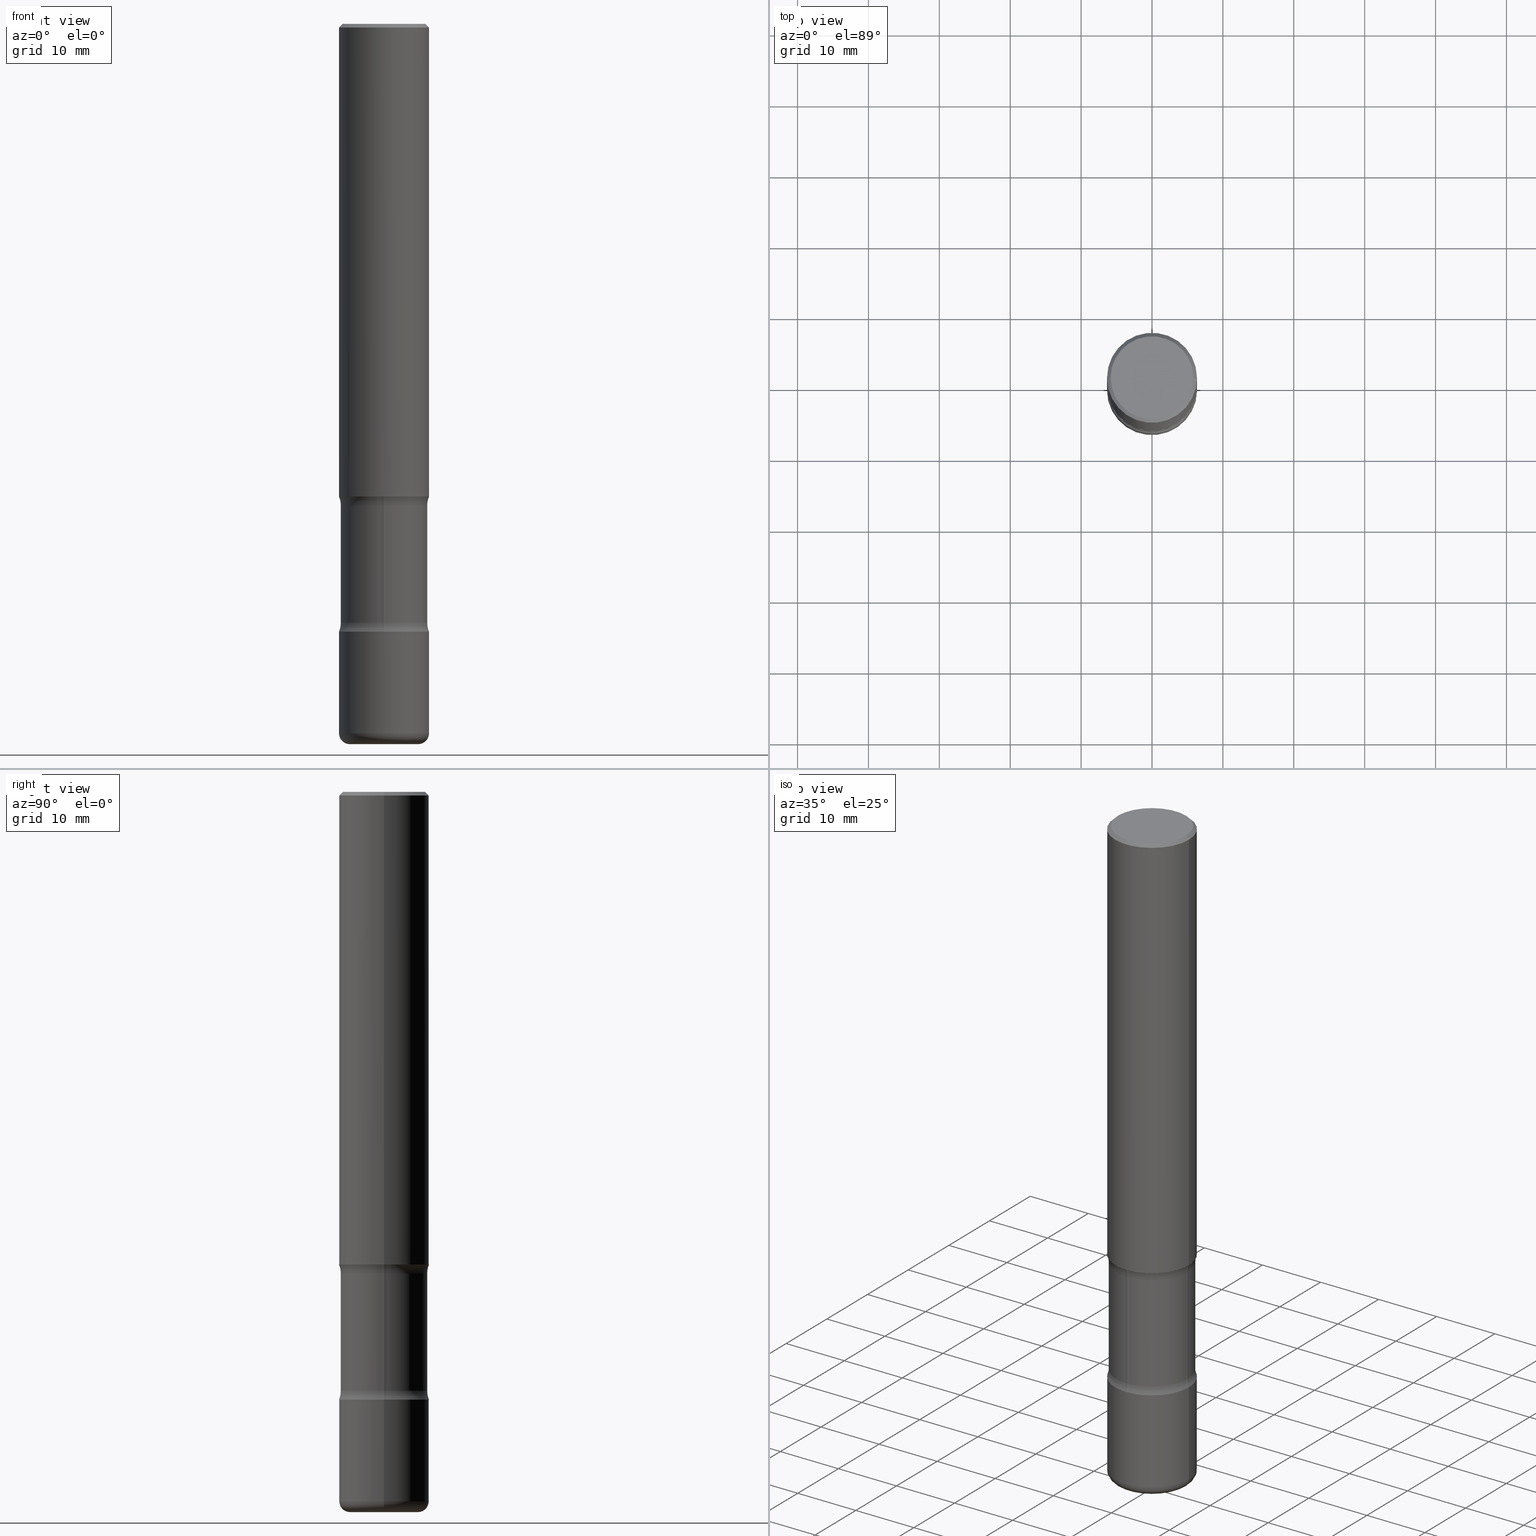
[diagram: canonical four-view strip — front | top / right | iso, engineering-drawing reading convention]
A machine part, canonical four-view strip (front | top / right | iso — engineering-drawing reading convention). The complete STEP part file that produces these views, byte-faithful:
ISO-10303-21;
HEADER;
FILE_DESCRIPTION (( 'STEP AP203' ),
    '1' );
FILE_NAME ('32768.STEP',
    '2023-03-11T07:00:43',
    ( '' ),
    ( '' ),
    'SwSTEP 2.0',
    'SolidWorks 2022',
    '' );
FILE_SCHEMA (( 'CONFIG_CONTROL_DESIGN' ));
ENDSEC;

DATA;
#1 = DIRECTION ( 'NONE',  ( -2.445468806185136597E-29, 3.491481338843145583E-15, 1.000000000000000000 ) ) ;
#2 = FACE_OUTER_BOUND ( 'NONE', #260, .T. ) ;
#3 = DIRECTION ( 'NONE',  ( -2.445468806185136597E-29, 3.491481338843145583E-15, 1.000000000000000000 ) ) ;
#4 = CIRCLE ( 'NONE', #334, 0.2500000000000000000 ) ;
#5 = FACE_OUTER_BOUND ( 'NONE', #225, .T. ) ;
#6 = TOROIDAL_SURFACE ( 'NONE', #145, 0.3649999999999999356, 0.1249999999999999584 ) ;
#7 = CARTESIAN_POINT ( 'NONE',  ( 1.606081415867839292E-15, 0.2299999999999997324, -8.009064516888723911E-16 ) ) ;
#8 = VERTEX_POINT ( 'NONE', #637 ) ;
#9 = CARTESIAN_POINT ( 'NONE',  ( 6.540663232779384843E-29, -9.334030794150637201E-15, -2.673989794855663682 ) ) ;
#10 = CARTESIAN_POINT ( 'NONE',  ( 4.890937612370287172E-31, -6.982962677686310098E-17, -0.02000000000000005593 ) ) ;
#11 = EDGE_CURVE ( 'NONE', #157, #113, #710, .T. ) ;
#12 = ORIENTED_EDGE ( 'NONE', *, *, #427, .T. ) ;
#13 = DIRECTION ( 'NONE',  ( 2.443322473091231846E-29, -3.494555009995310460E-15, -1.000000000000000000 ) ) ;
#14 = ORIENTED_EDGE ( 'NONE', *, *, #359, .T. ) ;
#15 = PLANE ( 'NONE',  #200 ) ;
#16 = CLOSED_SHELL ( 'NONE', ( #563, #460, #454, #107, #463, #139, #50, #82 ) ) ;
#17 = VECTOR ( 'NONE', #636, 39.37007874015748143 ) ;
#18 = ORIENTED_EDGE ( 'NONE', *, *, #268, .F. ) ;
#19 = ORIENTED_EDGE ( 'NONE', *, *, #233, .T. ) ;
#20 = DIRECTION ( 'NONE',  ( 6.982962677686265922E-15, 1.000000000000000000, -4.553079989440440670E-15 ) ) ;
#21 = EDGE_CURVE ( 'NONE', #164, #721, #623, .T. ) ;
#22 = FACE_OUTER_BOUND ( 'NONE', #257, .T. ) ;
#23 = DIRECTION ( 'NONE',  ( -1.000000000000000000, 6.982962677686265922E-15, -4.883557194083112340E-29 ) ) ;
#24 = ORIENTED_EDGE ( 'NONE', *, *, #256, .T. ) ;
#25 = LINE ( 'NONE', #68, #468 ) ;
#26 = VECTOR ( 'NONE', #510, 39.37007874015748143 ) ;
#27 = ORIENTED_EDGE ( 'NONE', *, *, #194, .F. ) ;
#28 = CALENDAR_DATE ( 2023, 11, 3 ) ;
#29 = CARTESIAN_POINT ( 'NONE',  ( -1.715124499442800060E-15, -0.2500000000000118239, -3.374999999999998668 ) ) ;
#30 = CARTESIAN_POINT ( 'NONE',  ( 9.766455520912181389E-29, -1.394771102909594036E-14, -3.994238073033861802 ) ) ;
#31 = EDGE_CURVE ( 'NONE', #336, #109, #341, .T. ) ;
#32 = CARTESIAN_POINT ( 'NONE',  ( -0.1899999999999999745, -1.240640527709780404E-14, -3.939999999999999947 ) ) ;
#33 = DIRECTION ( 'NONE',  ( -2.445468806185136877E-29, 3.491481338843145188E-15, 1.000000000000000000 ) ) ;
#34 = EDGE_CURVE ( 'NONE', #109, #787, #456, .T. ) ;
#35 = DATE_AND_TIME ( #659, #266 ) ;
#36 = FACE_OUTER_BOUND ( 'NONE', #269, .T. ) ;
#37 = LINE ( 'NONE', #306, #592 ) ;
#38 = AXIS2_PLACEMENT_3D ( 'NONE', #344, #355, #772 ) ;
#39 = CIRCLE ( 'NONE', #265, 0.1249999999999999584 ) ;
#40 = TOROIDAL_SURFACE ( 'NONE', #672, 0.3649999999999999356, 0.1249999999999999584 ) ;
#41 = EDGE_CURVE ( 'NONE', #253, #721, #160, .T. ) ;
#42 = CARTESIAN_POINT ( 'NONE',  ( 0.2500000000000000000, -1.091087918388482487E-14, -2.625000000000000000 ) ) ;
#43 = DATE_TIME_ROLE ( 'creation_date' ) ;
#44 = FACE_OUTER_BOUND ( 'NONE', #137, .T. ) ;
#45 = DIRECTION ( 'NONE',  ( -2.445468806185136597E-29, 3.491481338843145583E-15, 1.000000000000000000 ) ) ;
#46 = DIRECTION ( 'NONE',  ( -2.445468806185136597E-29, 3.491481338843145583E-15, 1.000000000000000000 ) ) ;
#47 = CIRCLE ( 'NONE', #415, 0.2399999999999999634 ) ;
#48 = DIRECTION ( 'NONE',  ( 6.982962677686265922E-15, 1.000000000000000000, -3.494555009995310854E-15 ) ) ;
#49 = CIRCLE ( 'NONE', #467, 0.2500000000000000000 ) ;
#50 = ADVANCED_FACE ( 'NONE', ( #798 ), #293, .F. ) ;
#51 = ORIENTED_EDGE ( 'NONE', *, *, #244, .T. ) ;
#52 = ORGANIZATION ( 'UNSPECIFIED', 'UNSPECIFIED', '' ) ;
#53 = FACE_OUTER_BOUND ( 'NONE', #760, .T. ) ;
#54 = ORIENTED_EDGE ( 'NONE', *, *, #31, .F. ) ;
#55 = CARTESIAN_POINT ( 'NONE',  ( 4.890937612370287172E-31, -6.982962677686310098E-17, -0.02000000000000005593 ) ) ;
#56 = DIRECTION ( 'NONE',  ( -6.982962677686265133E-15, -1.000000000000000000, 0.000000000000000000 ) ) ;
#57 = EDGE_LOOP ( 'NONE', ( #666, #12, #317, #520 ) ) ;
#58 = VERTEX_POINT ( 'NONE', #480 ) ;
#59 = FACE_OUTER_BOUND ( 'NONE', #763, .T. ) ;
#60 = CARTESIAN_POINT ( 'NONE',  ( -0.2500000000000000000, 1.776356839400250465E-15, -1.229733772563726445E-29 ) ) ;
#61 = ORIENTED_EDGE ( 'NONE', *, *, #494, .F. ) ;
#62 = AXIS2_PLACEMENT_3D ( 'NONE', #315, #686, #450 ) ;
#63 = CONICAL_SURFACE ( 'NONE', #87, 1127.411546571649069, 1.535889741755015248 ) ;
#64 = DIRECTION ( 'NONE',  ( -1.000000000000000000, 6.982962677686266711E-15, 0.000000000000000000 ) ) ;
#65 = FACE_OUTER_BOUND ( 'NONE', #542, .T. ) ;
#66 = ADVANCED_FACE ( 'NONE', ( #238 ), #176, .T. ) ;
#67 = ORIENTED_EDGE ( 'NONE', *, *, #194, .T. ) ;
#68 = CARTESIAN_POINT ( 'NONE',  ( -1.227697433986456075E-17, -1.394580769489453534E-14, -3.994238073033861802 ) ) ;
#69 = EDGE_CURVE ( 'NONE', #643, #345, #426, .T. ) ;
#70 = VERTEX_POINT ( 'NONE', #652 ) ;
#71 = CARTESIAN_POINT ( 'NONE',  ( 8.133759354151864072E-29, -1.161255198554411461E-14, -3.326010205144336318 ) ) ;
#72 = EDGE_LOOP ( 'NONE', ( #228, #285, #78, #729 ) ) ;
#73 = EDGE_CURVE ( 'NONE', #58, #335, #220, .T. ) ;
#74 = LENGTH_MEASURE_WITH_UNIT ( LENGTH_MEASURE( 0.02539999999999999897 ), #339 );
#75 = AXIS2_PLACEMENT_3D ( 'NONE', #32, #368, #794 ) ;
#76 = CIRCLE ( 'NONE', #711, 0.2299999999999997324 ) ;
#77 = CIRCLE ( 'NONE', #584, 0.2299999999999997324 ) ;
#78 = ORIENTED_EDGE ( 'NONE', *, *, #73, .T. ) ;
#79 = CARTESIAN_POINT ( 'NONE',  ( 8.253457220874836014E-29, -1.178374951859561452E-14, -3.375000000000000000 ) ) ;
#80 = DIRECTION ( 'NONE',  ( 1.000000000000000000, -6.982962677686265922E-15, 4.876176775795935793E-29 ) ) ;
#81 = ORIENTED_EDGE ( 'NONE', *, *, #268, .T. ) ;
#82 = ADVANCED_FACE ( 'NONE', ( #217 ), #597, .T. ) ;
#83 = DIRECTION ( 'NONE',  ( -2.445468806185136597E-29, 3.491481338843145583E-15, 1.000000000000000000 ) ) ;
#84 = CIRCLE ( 'NONE', #402, 0.2399999999999999079 ) ;
#85 = DIRECTION ( 'NONE',  ( 6.982962677686265922E-15, 1.000000000000000000, -3.494555009995310854E-15 ) ) ;
#86 = AXIS2_PLACEMENT_3D ( 'NONE', #129, #197, #386 ) ;
#87 = AXIS2_PLACEMENT_3D ( 'NONE', #258, #801, #191 ) ;
#88 = DIRECTION ( 'NONE',  ( 1.000000000000000000, -6.982962677686267499E-15, 0.000000000000000000 ) ) ;
#89 = ADVANCED_FACE ( 'NONE', ( #163 ), #419, .T. ) ;
#90 = ORIENTED_EDGE ( 'NONE', *, *, #122, .F. ) ;
#91 = PERSON_AND_ORGANIZATION ( #283, #52 ) ;
#92 = DIRECTION ( 'NONE',  ( -2.445468806185136877E-29, 3.491481338843145188E-15, 1.000000000000000000 ) ) ;
#93 = DIRECTION ( 'NONE',  ( -2.445468806185136597E-29, 3.491481338843145583E-15, 1.000000000000000000 ) ) ;
#94 = DIRECTION ( 'NONE',  ( 1.000000000000000000, -6.982962677686261977E-15, 0.000000000000000000 ) ) ;
#95 = EDGE_CURVE ( 'NONE', #577, #152, #607, .T. ) ;
#96 = PERSON_AND_ORGANIZATION_ROLE ( 'creator' ) ;
#97 = LINE ( 'NONE', #478, #785 ) ;
#98 = DIRECTION ( 'NONE',  ( -2.445468806185136597E-29, 3.491481338843145583E-15, 1.000000000000000000 ) ) ;
#99 = VERTEX_POINT ( 'NONE', #479 ) ;
#100 = APPROVAL_ROLE ( '' ) ;
#101 = CC_DESIGN_DATE_AND_TIME_ASSIGNMENT ( #369, #481, ( #393 ) ) ;
#102 = VECTOR ( 'NONE', #363, 39.37007874015748854 ) ;
#103 = PLANE ( 'NONE',  #350 ) ;
#104 = AXIS2_PLACEMENT_3D ( 'NONE', #221, #418, #660 ) ;
#105 = AXIS2_PLACEMENT_3D ( 'NONE', #767, #529, #776 ) ;
#106 = APPROVAL_DATE_TIME ( #35, #222 ) ;
#107 = ADVANCED_FACE ( 'NONE', ( #44 ), #171, .F. ) ;
#108 = CYLINDRICAL_SURFACE ( 'NONE', #551, 0.2399999999999999356 ) ;
#109 = VERTEX_POINT ( 'NONE', #796 ) ;
#110 = CARTESIAN_POINT ( 'NONE',  ( 9.781875224740545266E-29, -1.396592535537258075E-14, -3.999999999999999556 ) ) ;
#111 = CARTESIAN_POINT ( 'NONE',  ( 8.133654205733900913E-29, -1.161270256406331354E-14, -3.326010205144336318 ) ) ;
#112 = DIRECTION ( 'NONE',  ( 2.443322473091231846E-29, -3.494555009995310460E-15, -1.000000000000000000 ) ) ;
#113 = VERTEX_POINT ( 'NONE', #227 ) ;
#114 = DIRECTION ( 'NONE',  ( 1.000000000000000000, -6.982962677686265133E-15, 0.000000000000000000 ) ) ;
#115 = DIRECTION ( 'NONE',  ( 1.000000000000000000, -6.982962677686269077E-15, 0.000000000000000000 ) ) ;
#116 = AXIS2_PLACEMENT_3D ( 'NONE', #290, #535, #205 ) ;
#117 = AXIS2_PLACEMENT_3D ( 'NONE', #123, #247, #634 ) ;
#118 = EDGE_LOOP ( 'NONE', ( #532, #400, #218, #506 ) ) ;
#119 = DIRECTION ( 'NONE',  ( 2.438088387897960049E-29, -3.491481338843145188E-15, -1.000000000000000000 ) ) ;
#120 = CARTESIAN_POINT ( 'NONE',  ( 8.133654205733900913E-29, -1.161270256406331354E-14, -3.326010205144336318 ) ) ;
#121 = ORIENTED_EDGE ( 'NONE', *, *, #41, .T. ) ;
#122 = EDGE_CURVE ( 'NONE', #141, #470, #37, .T. ) ;
#123 = CARTESIAN_POINT ( 'NONE',  ( 9.766455520912181389E-29, -1.394771102909594036E-14, -3.994238073033861802 ) ) ;
#124 = ORIENTED_EDGE ( 'NONE', *, *, #233, .F. ) ;
#125 = CARTESIAN_POINT ( 'NONE',  ( 0.2399999999999999634, -1.328861360670801692E-14, -3.326010205144336318 ) ) ;
#126 = EDGE_LOOP ( 'NONE', ( #239, #754 ) ) ;
#127 = DIRECTION ( 'NONE',  ( -2.445468806185136597E-29, 3.491481338843145583E-15, 1.000000000000000000 ) ) ;
#128 = EDGE_CURVE ( 'NONE', #411, #751, #4, .T. ) ;
#129 = CARTESIAN_POINT ( 'NONE',  ( 6.419355616235983567E-29, -9.165138514463256612E-15, -2.625000000000000000 ) ) ;
#130 = AXIS2_PLACEMENT_3D ( 'NONE', #156, #654, #88 ) ;
#131 = ORIENTED_EDGE ( 'NONE', *, *, #34, .F. ) ;
#132 = CIRCLE ( 'NONE', #552, 0.1249999999999999584 ) ;
#133 = ADVANCED_BREP_SHAPE_REPRESENTATION ( '32768', ( #677, #146, #413, #425, #444 ), #279 ) ;
#134 = LOCAL_TIME ( 2, 0, 43.00000000000000000, #782 ) ;
#135 = CARTESIAN_POINT ( 'NONE',  ( -0.2500000000000000000, -1.000739267919536563E-14, -3.375000000000000000 ) ) ;
#136 = PLANE ( 'NONE',  #670 ) ;
#137 = EDGE_LOOP ( 'NONE', ( #764, #61, #562, #193 ) ) ;
#138 = CARTESIAN_POINT ( 'NONE',  ( 1.675911042644801198E-15, 0.2399999999999860023, -3.994238073033863134 ) ) ;
#139 = ADVANCED_FACE ( 'NONE', ( #783 ), #103, .F. ) ;
#140 = ORIENTED_EDGE ( 'NONE', *, *, #389, .T. ) ;
#141 = VERTEX_POINT ( 'NONE', #302 ) ;
#142 = CARTESIAN_POINT ( 'NONE',  ( -1.043851414335219820E-46, 1.490343170380447200E-32, 4.268512490100411279E-18 ) ) ;
#143 = AXIS2_PLACEMENT_3D ( 'NONE', #158, #83, #357 ) ;
#144 = AXIS2_PLACEMENT_3D ( 'NONE', #429, #288, #675 ) ;
#145 = AXIS2_PLACEMENT_3D ( 'NONE', #586, #521, #765 ) ;
#146 = MANIFOLD_SOLID_BREP ( 'Body-Move/Copy2[2]', #719 ) ;
#147 = CARTESIAN_POINT ( 'NONE',  ( 0.2399999999999999356, -1.084104955710796157E-14, -2.625000000000000000 ) ) ;
#148 = VERTEX_POINT ( 'NONE', #541 ) ;
#149 = DIRECTION ( 'NONE',  ( -1.000000000000000000, 6.982962677686265922E-15, -4.876176775795935793E-29 ) ) ;
#150 = ADVANCED_FACE ( 'NONE', ( #422 ), #108, .T. ) ;
#151 = CYLINDRICAL_SURFACE ( 'NONE', #307, 0.2499999999999998890 ) ;
#152 = VERTEX_POINT ( 'NONE', #360 ) ;
#153 = MECHANICAL_CONTEXT ( 'NONE', #309, 'mechanical' ) ;
#154 = EDGE_CURVE ( 'NONE', #336, #253, #466, .T. ) ;
#155 = CARTESIAN_POINT ( 'NONE',  ( 1.675911042644784829E-15, 0.2399999999999883615, -3.326010205144337206 ) ) ;
#156 = CARTESIAN_POINT ( 'NONE',  ( 9.781875224740545266E-29, -1.396592535537258075E-14, -3.999999999999999556 ) ) ;
#157 = VERTEX_POINT ( 'NONE', #492 ) ;
#158 = CARTESIAN_POINT ( 'NONE',  ( 8.253457220874836014E-29, -1.178374951859561452E-14, -3.375000000000000000 ) ) ;
#159 = PERSON_AND_ORGANIZATION ( #283, #52 ) ;
#160 = CIRCLE ( 'NONE', #669, 0.1249999999999999584 ) ;
#161 = CARTESIAN_POINT ( 'NONE',  ( 6.419355616235983567E-29, -9.165138514463256612E-15, -2.625000000000000000 ) ) ;
#162 = CIRCLE ( 'NONE', #770, 0.1650000000000000078 ) ;
#163 = FACE_OUTER_BOUND ( 'NONE', #461, .T. ) ;
#164 = VERTEX_POINT ( 'NONE', #736 ) ;
#165 = DIRECTION ( 'NONE',  ( 2.443322473091231566E-29, -3.494555009995310460E-15, -1.000000000000000000 ) ) ;
#166 = DIRECTION ( 'NONE',  ( -6.982962677686265922E-15, -1.000000000000000000, 3.494555009995310460E-15 ) ) ;
#167 = EDGE_CURVE ( 'NONE', #157, #99, #322, .T. ) ;
#168 = PERSON_AND_ORGANIZATION_ROLE ( 'design_owner' ) ;
#169 = DIRECTION ( 'NONE',  ( 2.443322473091231846E-29, -3.494555009995310460E-15, -1.000000000000000000 ) ) ;
#170 = CALENDAR_DATE ( 2023, 11, 3 ) ;
#171 = TOROIDAL_SURFACE ( 'NONE', #569, 0.3649999999999998801, 0.1249999999999999584 ) ;
#172 = DIRECTION ( 'NONE',  ( 1.000000000000000000, -6.982962677686270655E-15, 0.000000000000000000 ) ) ;
#173 = CIRCLE ( 'NONE', #86, 0.2500000000000000000 ) ;
#174 = DIRECTION ( 'NONE',  ( 2.443322473091232126E-29, -3.494555009995310460E-15, -1.000000000000000000 ) ) ;
#175 = CARTESIAN_POINT ( 'NONE',  ( 6.539158631376917547E-29, -9.336185468995560747E-15, -2.673989794855663682 ) ) ;
#176 = CYLINDRICAL_SURFACE ( 'NONE', #524, 0.2399999999999999356 ) ;
#177 = VERTEX_POINT ( 'NONE', #615 ) ;
#178 = DIRECTION ( 'NONE',  ( 6.982962677686265922E-15, 1.000000000000000000, -4.553079989440440670E-15 ) ) ;
#179 = CC_DESIGN_PERSON_AND_ORGANIZATION_ASSIGNMENT ( #730, #537, ( #393 ) ) ;
#180 = DIRECTION ( 'NONE',  ( -1.000000000000000000, 6.982962677686266711E-15, 0.000000000000000000 ) ) ;
#181 = CARTESIAN_POINT ( 'NONE',  ( 6.419355616235983567E-29, -9.165138514463256612E-15, -2.625000000000000000 ) ) ;
#182 = VERTEX_POINT ( 'NONE', #42 ) ;
#183 = DIRECTION ( 'NONE',  ( 1.000000000000000000, -6.982962677686265133E-15, 0.000000000000000000 ) ) ;
#184 = CARTESIAN_POINT ( 'NONE',  ( 9.635147096369438236E-29, -1.375643647504199401E-14, -3.939999999999999947 ) ) ;
#185 = TOROIDAL_SURFACE ( 'NONE', #392, 0.3649999999999998801, 0.1249999999999999584 ) ;
#186 = ORIENTED_EDGE ( 'NONE', *, *, #69, .F. ) ;
#187 = CARTESIAN_POINT ( 'NONE',  ( 0.3649999999999999356, -1.416148394141880026E-14, -3.326010205144336318 ) ) ;
#188 = DIRECTION ( 'NONE',  ( 1.000000000000000000, -6.982962677686266711E-15, 4.876176775795935793E-29 ) ) ;
#189 = VERTEX_POINT ( 'NONE', #299 ) ;
#190 = ORIENTED_EDGE ( 'NONE', *, *, #167, .F. ) ;
#191 = DIRECTION ( 'NONE',  ( -1.000000000000000000, 6.982962677686266711E-15, 0.000000000000000000 ) ) ;
#192 = CARTESIAN_POINT ( 'NONE',  ( 9.635147096369438236E-29, -1.375643647504199401E-14, -3.939999999999999947 ) ) ;
#193 = ORIENTED_EDGE ( 'NONE', *, *, #762, .T. ) ;
#194 = EDGE_CURVE ( 'NONE', #787, #109, #84, .T. ) ;
#195 = FACE_OUTER_BOUND ( 'NONE', #57, .T. ) ;
#196 = DIMENSIONAL_EXPONENTS ( 1.000000000000000000, 0.000000000000000000, 0.000000000000000000, 0.000000000000000000, 0.000000000000000000, 0.000000000000000000, 0.000000000000000000 ) ;
#197 = DIRECTION ( 'NONE',  ( -2.445468806185136597E-29, 3.491481338843145583E-15, 1.000000000000000000 ) ) ;
#198 = ORIENTED_EDGE ( 'NONE', *, *, #540, .F. ) ;
#199 = VECTOR ( 'NONE', #174, 39.37007874015748143 ) ;
#200 = AXIS2_PLACEMENT_3D ( 'NONE', #79, #201, #149 ) ;
#201 = DIRECTION ( 'NONE',  ( 2.438088387897960049E-29, -3.491481338843145188E-15, -1.000000000000000000 ) ) ;
#202 = CC_DESIGN_PERSON_AND_ORGANIZATION_ASSIGNMENT ( #793, #168, ( #614 ) ) ;
#203 = ORIENTED_EDGE ( 'NONE', *, *, #743, .T. ) ;
#204 = DIRECTION ( 'NONE',  ( -0.9993908270190959842, 6.856857904024576981E-15, -0.03489949670249575808 ) ) ;
#205 = DIRECTION ( 'NONE',  ( 1.000000000000000000, -6.982962677686270655E-15, 0.000000000000000000 ) ) ;
#206 = DIRECTION ( 'NONE',  ( 6.982962677686265922E-15, 1.000000000000000000, -4.370956789862821150E-15 ) ) ;
#207 = EDGE_LOOP ( 'NONE', ( #414, #741, #67, #198 ) ) ;
#208 = DIRECTION ( 'NONE',  ( -1.000000000000000000, 7.105427357600998703E-15, 0.000000000000000000 ) ) ;
#209 = AXIS2_PLACEMENT_3D ( 'NONE', #431, #676, #731 ) ;
#210 = CARTESIAN_POINT ( 'NONE',  ( -0.2399999999999999356, -7.459835948639017807E-15, -2.625000000000000000 ) ) ;
#211 = CARTESIAN_POINT ( 'NONE',  ( 6.419355616235983567E-29, -9.165138514463256612E-15, -2.625000000000000000 ) ) ;
#212 = AXIS2_PLACEMENT_3D ( 'NONE', #629, #626, #188 ) ;
#213 = CIRCLE ( 'NONE', #62, 0.2500000000000000000 ) ;
#214 = ORIENTED_EDGE ( 'NONE', *, *, #705, .F. ) ;
#215 = EDGE_CURVE ( 'NONE', #148, #58, #501, .T. ) ;
#216 =( CONVERSION_BASED_UNIT ( 'INCH', #74 ) LENGTH_UNIT ( ) NAMED_UNIT ( #196 ) );
#217 = FACE_OUTER_BOUND ( 'NONE', #744, .T. ) ;
#218 = ORIENTED_EDGE ( 'NONE', *, *, #557, .T. ) ;
#219 = PERSON_AND_ORGANIZATION_ROLE ( 'design_supplier' ) ;
#220 = CIRCLE ( 'NONE', #38, 0.2500000000000000000 ) ;
#221 = CARTESIAN_POINT ( 'NONE',  ( 8.133654205733900913E-29, -1.161270256406331354E-14, -3.326010205144336318 ) ) ;
#222 = APPROVAL ( #229, 'UNSPECIFIED' ) ;
#223 = CC_DESIGN_APPROVAL ( #222, ( #673 ) ) ;
#224 = DIRECTION ( 'NONE',  ( 1.000000000000000000, -6.982962677686266711E-15, 4.876176775795935793E-29 ) ) ;
#225 = EDGE_LOOP ( 'NONE', ( #690, #203, #703 ) ) ;
#226 = CARTESIAN_POINT ( 'NONE',  ( 6.419355616235983567E-29, -9.165138514463256612E-15, -2.625000000000000000 ) ) ;
#227 = CARTESIAN_POINT ( 'NONE',  ( 0.1899999999999999745, -1.529268826413297395E-14, -4.000000000000000888 ) ) ;
#228 = ORIENTED_EDGE ( 'NONE', *, *, #738, .F. ) ;
#229 = APPROVAL_STATUS ( 'not_yet_approved' ) ;
#230 = ADVANCED_FACE ( 'NONE', ( #371 ), #549, .T. ) ;
#231 = CARTESIAN_POINT ( 'NONE',  ( 6.419355616235983567E-29, -9.165138514463256612E-15, -2.625000000000000000 ) ) ;
#232 = DESIGN_CONTEXT ( 'detailed design', #280, 'design' ) ;
#233 = EDGE_CURVE ( 'NONE', #574, #410, #699, .T. ) ;
#234 = AXIS2_PLACEMENT_3D ( 'NONE', #434, #555, #680 ) ;
#235 = DIRECTION ( 'NONE',  ( -0.7071067811865474617, 2.468850131082256666E-15, -0.7071067811865474617 ) ) ;
#236 = CIRCLE ( 'NONE', #504, 0.1249999999999999584 ) ;
#237 = LOCAL_TIME ( 2, 0, 43.00000000000000000, #611 ) ;
#238 = FACE_OUTER_BOUND ( 'NONE', #276, .T. ) ;
#239 = ORIENTED_EDGE ( 'NONE', *, *, #21, .F. ) ;
#240 = ADVANCED_FACE ( 'NONE', ( #620 ), #275, .T. ) ;
#241 = CARTESIAN_POINT ( 'NONE',  ( 0.2299999999999997324, -1.681434332853597433E-15, 4.268512490111905999E-18 ) ) ;
#242 = CARTESIAN_POINT ( 'NONE',  ( 2.548781377355568365E-15, 0.3649999999999883338, -3.326010205144337206 ) ) ;
#243 = ORIENTED_EDGE ( 'NONE', *, *, #805, .T. ) ;
#244 = EDGE_CURVE ( 'NONE', #189, #99, #251, .T. ) ;
#245 = FACE_OUTER_BOUND ( 'NONE', #528, .T. ) ;
#246 = FACE_OUTER_BOUND ( 'NONE', #439, .T. ) ;
#247 = DIRECTION ( 'NONE',  ( 2.443322473091231846E-29, -3.494555009995310460E-15, -1.000000000000000000 ) ) ;
#248 = DIRECTION ( 'NONE',  ( 2.438088387897960049E-29, -3.491481338843145188E-15, -1.000000000000000000 ) ) ;
#249 = ADVANCED_FACE ( 'NONE', ( #688 ), #305, .T. ) ;
#250 = CC_DESIGN_PERSON_AND_ORGANIZATION_ASSIGNMENT ( #472, #219, ( #673 ) ) ;
#251 = CIRCLE ( 'NONE', #655, 0.2499999999999999722 ) ;
#252 = AXIS2_PLACEMENT_3D ( 'NONE', #192, #503, #747 ) ;
#253 = VERTEX_POINT ( 'NONE', #693 ) ;
#254 = CIRCLE ( 'NONE', #406, 0.2399999999999999634 ) ;
#255 = DIRECTION ( 'NONE',  ( -6.982962677686266711E-15, -1.000000000000000000, 3.491481338843145583E-15 ) ) ;
#256 = EDGE_CURVE ( 'NONE', #177, #345, #498, .T. ) ;
#257 = EDGE_LOOP ( 'NONE', ( #190, #681, #14, #18 ) ) ;
#258 = CARTESIAN_POINT ( 'NONE',  ( 1.060460840681890784E-27, -1.514057029249396506E-13, -43.36431681319133702 ) ) ;
#259 = DIRECTION ( 'NONE',  ( -2.445468806185136597E-29, 3.491481338843145583E-15, 1.000000000000000000 ) ) ;
#260 = EDGE_LOOP ( 'NONE', ( #485, #496 ) ) ;
#261 = CARTESIAN_POINT ( 'NONE',  ( -0.1649999999999997025, -1.281373651355435053E-14, -3.999999999999999556 ) ) ;
#262 = EDGE_CURVE ( 'NONE', #253, #336, #47, .T. ) ;
#263 = AXIS2_PLACEMENT_3D ( 'NONE', #319, #3, #94 ) ;
#264 = ORIENTED_EDGE ( 'NONE', *, *, #122, .T. ) ;
#265 = AXIS2_PLACEMENT_3D ( 'NONE', #619, #564, #114 ) ;
#266 = LOCAL_TIME ( 2, 0, 43.00000000000000000, #286 ) ;
#267 = CARTESIAN_POINT ( 'NONE',  ( -0.3649999999999998801, -6.742704483471196709E-15, -2.673989794855663682 ) ) ;
#268 = EDGE_CURVE ( 'NONE', #99, #189, #720, .T. ) ;
#269 = EDGE_LOOP ( 'NONE', ( #599, #795 ) ) ;
#270 = EDGE_LOOP ( 'NONE', ( #777, #511, #622, #90 ) ) ;
#271 = DIRECTION ( 'NONE',  ( 2.443322473091231846E-29, -3.494555009995310460E-15, -1.000000000000000000 ) ) ;
#272 = DIRECTION ( 'NONE',  ( -2.445468806185136597E-29, 3.491481338843145583E-15, 1.000000000000000000 ) ) ;
#273 = LINE ( 'NONE', #60, #26 ) ;
#274 = CC_DESIGN_DATE_AND_TIME_ASSIGNMENT ( #423, #43, ( #287 ) ) ;
#275 = CONICAL_SURFACE ( 'NONE', #769, 0.2499999999999998057, 0.7853981633974482790 ) ;
#276 = EDGE_LOOP ( 'NONE', ( #291, #432, #516, #27 ) ) ;
#277 = LINE ( 'NONE', #395, #733 ) ;
#278 = CIRCLE ( 'NONE', #337, 0.1899999999999999745 ) ;
#279 =( GEOMETRIC_REPRESENTATION_CONTEXT ( 3 ) GLOBAL_UNCERTAINTY_ASSIGNED_CONTEXT ( ( #545 ) ) GLOBAL_UNIT_ASSIGNED_CONTEXT ( ( #216, #724, #476 ) ) REPRESENTATION_CONTEXT ( 'NONE', 'WORKASPACE' ) );
#280 = APPLICATION_CONTEXT ( 'configuration controlled 3d designs of mechanical parts and assemblies' ) ;
#281 = DIRECTION ( 'NONE',  ( -2.445468806185136597E-29, 3.491481338843145583E-15, 1.000000000000000000 ) ) ;
#282 = EDGE_LOOP ( 'NONE', ( #140, #590, #398, #650 ) ) ;
#283 = PERSON ( 'UNSPECIFIED', 'UNSPECIFIED', 'UNSPECIFIED', ('UNSPECIFIED'), ('UNSPECIFIED'), ('UNSPECIFIED') ) ;
#284 = DIRECTION ( 'NONE',  ( 2.443322473091231846E-29, -3.494555009995310460E-15, -1.000000000000000000 ) ) ;
#285 = ORIENTED_EDGE ( 'NONE', *, *, #215, .T. ) ;
#286 = COORDINATED_UNIVERSAL_TIME_OFFSET ( 5, 0, .BEHIND. ) ;
#287 = PRODUCT_DEFINITION ( 'UNKNOWN', '', #673, #232 ) ;
#288 = DIRECTION ( 'NONE',  ( 2.443322473091231846E-29, -3.494555009995310460E-15, -1.000000000000000000 ) ) ;
#289 = DIRECTION ( 'NONE',  ( -1.000000000000000000, 6.982962677686265922E-15, -4.883557194083112340E-29 ) ) ;
#290 = CARTESIAN_POINT ( 'NONE',  ( 6.539158631376917547E-29, -9.336185468995560747E-15, -2.673989794855663682 ) ) ;
#291 = ORIENTED_EDGE ( 'NONE', *, *, #773, .F. ) ;
#292 = PERSON_AND_ORGANIZATION_ROLE ( 'creator' ) ;
#293 = TOROIDAL_SURFACE ( 'NONE', #582, 0.3649999999999999356, 0.1249999999999999584 ) ;
#294 = AXIS2_PLACEMENT_3D ( 'NONE', #211, #683, #378 ) ;
#295 = AXIS2_PLACEMENT_3D ( 'NONE', #695, #327, #304 ) ;
#296 = DIRECTION ( 'NONE',  ( -2.443322473091231566E-29, 3.494555009995310460E-15, 1.000000000000000000 ) ) ;
#297 = CARTESIAN_POINT ( 'NONE',  ( 0.000000000000000000, 0.000000000000000000, 0.000000000000000000 ) ) ;
#298 = ADVANCED_FACE ( 'NONE', ( #246 ), #632, .T. ) ;
#299 = CARTESIAN_POINT ( 'NONE',  ( 0.2500000000000000555, -1.550217714446356069E-14, -3.939999999999999947 ) ) ;
#300 = APPROVAL_DATE_TIME ( #617, #766 ) ;
#301 = LINE ( 'NONE', #735, #199 ) ;
#302 = CARTESIAN_POINT ( 'NONE',  ( -0.2299999999999997324, 1.640996229256270744E-15, 4.268512490089056766E-18 ) ) ;
#303 = EDGE_CURVE ( 'NONE', #8, #335, #132, .T. ) ;
#304 = DIRECTION ( 'NONE',  ( 1.000000000000000000, -6.982962677686268288E-15, 4.883557194083112901E-29 ) ) ;
#305 = TOROIDAL_SURFACE ( 'NONE', #490, 0.1899999999999999745, 0.06000000000000021289 ) ;
#306 = CARTESIAN_POINT ( 'NONE',  ( -0.2499999999999998057, 1.675911042644702196E-15, -0.02000000000000005593 ) ) ;
#307 = AXIS2_PLACEMENT_3D ( 'NONE', #409, #281, #716 ) ;
#308 = VECTOR ( 'NONE', #707, 39.37007874015748143 ) ;
#309 = APPLICATION_CONTEXT ( 'configuration controlled 3d designs of mechanical parts and assemblies' ) ;
#310 = EDGE_CURVE ( 'NONE', #141, #577, #76, .T. ) ;
#311 = ORIENTED_EDGE ( 'NONE', *, *, #743, .F. ) ;
#312 = DIRECTION ( 'NONE',  ( 1.000000000000000000, -6.982962677686267499E-15, 0.000000000000000000 ) ) ;
#313 = PLANE ( 'NONE',  #593 ) ;
#314 = ADVANCED_FACE ( 'NONE', ( #2 ), #696, .F. ) ;
#315 = CARTESIAN_POINT ( 'NONE',  ( 8.253457220874836014E-29, -1.178374951859561452E-14, -3.375000000000000000 ) ) ;
#316 = CC_DESIGN_PERSON_AND_ORGANIZATION_ASSIGNMENT ( #533, #292, ( #673 ) ) ;
#317 = ORIENTED_EDGE ( 'NONE', *, *, #639, .F. ) ;
#318 = CARTESIAN_POINT ( 'NONE',  ( -1.043851414335219820E-46, 1.490343170380447200E-32, 4.268512490100411279E-18 ) ) ;
#319 = CARTESIAN_POINT ( 'NONE',  ( 9.781875224740547508E-29, -1.396592535537258391E-14, -4.000000000000000888 ) ) ;
#320 = DIRECTION ( 'NONE',  ( 1.000000000000000000, -6.982962677686268288E-15, 4.883557194083112901E-29 ) ) ;
#321 = CARTESIAN_POINT ( 'NONE',  ( 0.1899999999999999745, -1.508319938380238721E-14, -3.939999999999999947 ) ) ;
#322 = CIRCLE ( 'NONE', #75, 0.06000000000000021289 ) ;
#323 = AXIS2_PLACEMENT_3D ( 'NONE', #226, #575, #385 ) ;
#324 = AXIS2_PLACEMENT_3D ( 'NONE', #517, #271, #20 ) ;
#325 = ORIENTED_EDGE ( 'NONE', *, *, #559, .T. ) ;
#326 = LOCAL_TIME ( 2, 0, 43.00000000000000000, #715 ) ;
#327 = DIRECTION ( 'NONE',  ( -2.445468806185136597E-29, 3.491481338843145583E-15, 1.000000000000000000 ) ) ;
#328 = FACE_BOUND ( 'NONE', #691, .T. ) ;
#329 = ORIENTED_EDGE ( 'NONE', *, *, #11, .F. ) ;
#330 = CARTESIAN_POINT ( 'NONE',  ( -1.680822009453943183E-15, -0.2400000000000115652, -3.326010205144334986 ) ) ;
#331 = CC_DESIGN_PERSON_AND_ORGANIZATION_ASSIGNMENT ( #91, #96, ( #287 ) ) ;
#332 = ORIENTED_EDGE ( 'NONE', *, *, #154, .T. ) ;
#333 = DIRECTION ( 'NONE',  ( 7.105427357601001859E-15, 1.000000000000000000, -3.491481338843145583E-15 ) ) ;
#334 = AXIS2_PLACEMENT_3D ( 'NONE', #725, #602, #172 ) ;
#335 = VERTEX_POINT ( 'NONE', #701 ) ;
#336 = VERTEX_POINT ( 'NONE', #125 ) ;
#337 = AXIS2_PLACEMENT_3D ( 'NONE', #753, #455, #589 ) ;
#338 = APPROVAL_PERSON_ORGANIZATION ( #159, #621, #100 ) ;
#339 =( LENGTH_UNIT ( ) NAMED_UNIT ( * ) SI_UNIT ( $, .METRE. ) );
#340 = FACE_OUTER_BOUND ( 'NONE', #384, .T. ) ;
#341 = LINE ( 'NONE', #147, #784 ) ;
#342 = DIRECTION ( 'NONE',  ( -2.445468806185136877E-29, 3.491481338843145188E-15, 1.000000000000000000 ) ) ;
#343 = DIRECTION ( 'NONE',  ( 1.000000000000000000, -6.982962677686266711E-15, 0.000000000000000000 ) ) ;
#344 = CARTESIAN_POINT ( 'NONE',  ( 6.420965366056412900E-29, -9.162833261099134137E-15, -2.625000000000000000 ) ) ;
#345 = VERTEX_POINT ( 'NONE', #451 ) ;
#346 = ORIENTED_EDGE ( 'NONE', *, *, #358, .T. ) ;
#347 = DIRECTION ( 'NONE',  ( 1.000000000000000000, -6.982962677686266711E-15, 4.876225828469314487E-29 ) ) ;
#348 = EDGE_CURVE ( 'NONE', #182, #509, #173, .T. ) ;
#349 = ORIENTED_EDGE ( 'NONE', *, *, #762, .F. ) ;
#350 = AXIS2_PLACEMENT_3D ( 'NONE', #727, #296, #166 ) ;
#351 = EDGE_LOOP ( 'NONE', ( #349, #781 ) ) ;
#352 = CALENDAR_DATE ( 2023, 11, 3 ) ;
#353 = CIRCLE ( 'NONE', #144, 0.2500000000000000000 ) ;
#354 = CC_DESIGN_APPROVAL ( #766, ( #393 ) ) ;
#355 = DIRECTION ( 'NONE',  ( 2.443322473091231846E-29, -3.494555009995310460E-15, -1.000000000000000000 ) ) ;
#356 = ORIENTED_EDGE ( 'NONE', *, *, #738, .T. ) ;
#357 = DIRECTION ( 'NONE',  ( 1.000000000000000000, -6.982962677686262766E-15, 0.000000000000000000 ) ) ;
#358 = EDGE_CURVE ( 'NONE', #99, #394, #273, .T. ) ;
#359 = EDGE_CURVE ( 'NONE', #113, #189, #745, .T. ) ;
#360 = CARTESIAN_POINT ( 'NONE',  ( 0.2499999999999998057, -1.784954126219744611E-15, -0.02000000000000005593 ) ) ;
#361 = APPLICATION_PROTOCOL_DEFINITION ( 'international standard', 'config_control_design', 1994, #309 ) ;
#362 = CARTESIAN_POINT ( 'NONE',  ( -0.2499999999999998057, 1.675911042644702196E-15, -0.02000000000000005593 ) ) ;
#363 = DIRECTION ( 'NONE',  ( 0.7071067811865474617, -7.319954787623256045E-15, -0.7071067811865474617 ) ) ;
#364 = CALENDAR_DATE ( 2023, 11, 3 ) ;
#365 = EDGE_CURVE ( 'NONE', #182, #152, #508, .T. ) ;
#366 = AXIS2_PLACEMENT_3D ( 'NONE', #161, #165, #664 ) ;
#367 = CIRCLE ( 'NONE', #554, 0.2500000000000000000 ) ;
#368 = DIRECTION ( 'NONE',  ( 7.105427357601001859E-15, 1.000000000000000000, -3.491481338843145583E-15 ) ) ;
#369 = DATE_AND_TIME ( #364, #134 ) ;
#370 = DIRECTION ( 'NONE',  ( 1.000000000000000000, -6.860497997771530774E-15, 4.840761238008761812E-29 ) ) ;
#371 = FACE_OUTER_BOUND ( 'NONE', #445, .T. ) ;
#372 = ADVANCED_FACE ( 'NONE', ( #65, #328 ), #136, .F. ) ;
#373 = CARTESIAN_POINT ( 'NONE',  ( 1.745740669421649508E-15, 0.2499999999999882594, -3.375000000000000888 ) ) ;
#374 = DIRECTION ( 'NONE',  ( -6.982962677686265133E-15, -1.000000000000000000, 0.000000000000000000 ) ) ;
#375 = ORIENTED_EDGE ( 'NONE', *, *, #310, .F. ) ;
#376 = DIRECTION ( 'NONE',  ( 2.445468806185136597E-29, -3.491481338843145583E-15, -1.000000000000000000 ) ) ;
#377 = ORIENTED_EDGE ( 'NONE', *, *, #674, .T. ) ;
#378 = DIRECTION ( 'NONE',  ( 1.000000000000000000, -6.982962677686270655E-15, 0.000000000000000000 ) ) ;
#379 = CIRCLE ( 'NONE', #570, 0.1249999999999999584 ) ;
#380 = AXIS2_PLACEMENT_3D ( 'NONE', #755, #651, #641 ) ;
#381 = EDGE_CURVE ( 'NONE', #152, #470, #635, .T. ) ;
#382 = DIRECTION ( 'NONE',  ( -1.000000000000000000, 6.982962677686265922E-15, -4.876176775795935793E-29 ) ) ;
#383 = DIRECTION ( 'NONE',  ( -2.445468806185136597E-29, 3.491481338843145583E-15, 1.000000000000000000 ) ) ;
#384 = EDGE_LOOP ( 'NONE', ( #435, #775, #548, #550 ) ) ;
#385 = DIRECTION ( 'NONE',  ( 1.000000000000000000, -6.982962677686265922E-15, 4.876176775795935793E-29 ) ) ;
#386 = DIRECTION ( 'NONE',  ( 1.000000000000000000, -6.982962677686270655E-15, 0.000000000000000000 ) ) ;
#387 = ORIENTED_EDGE ( 'NONE', *, *, #718, .T. ) ;
#388 = DIRECTION ( 'NONE',  ( -1.000000000000000000, 6.982962677686266711E-15, 0.000000000000000000 ) ) ;
#389 = EDGE_CURVE ( 'NONE', #113, #157, #278, .T. ) ;
#390 = CARTESIAN_POINT ( 'NONE',  ( 0.2499999999999998890, -1.745740669421565889E-15, 1.219044193948983388E-29 ) ) ;
#391 = CLOSED_SHELL ( 'NONE', ( #150, #627, #605, #598, #399, #662, #679, #66 ) ) ;
#392 = AXIS2_PLACEMENT_3D ( 'NONE', #558, #45, #320 ) ;
#393 = SECURITY_CLASSIFICATION ( '', '', #600 ) ;
#394 = VERTEX_POINT ( 'NONE', #768 ) ;
#395 = CARTESIAN_POINT ( 'NONE',  ( -0.2499999999999998890, 1.776356839400249676E-15, -1.229733772563726025E-29 ) ) ;
#396 = DIRECTION ( 'NONE',  ( -2.445468806185136597E-29, 3.491481338843145583E-15, 1.000000000000000000 ) ) ;
#397 = EDGE_CURVE ( 'NONE', #751, #411, #624, .T. ) ;
#398 = ORIENTED_EDGE ( 'NONE', *, *, #244, .F. ) ;
#399 = ADVANCED_FACE ( 'NONE', ( #53 ), #313, .T. ) ;
#400 = ORIENTED_EDGE ( 'NONE', *, *, #154, .F. ) ;
#401 = ORIENTED_EDGE ( 'NONE', *, *, #69, .T. ) ;
#402 = AXIS2_PLACEMENT_3D ( 'NONE', #544, #487, #740 ) ;
#403 = EDGE_LOOP ( 'NONE', ( #499, #375, #264, #458 ) ) ;
#404 = TOROIDAL_SURFACE ( 'NONE', #104, 0.3649999999999999356, 0.1249999999999999584 ) ;
#405 = ADVANCED_FACE ( 'NONE', ( #340 ), #151, .T. ) ;
#406 = AXIS2_PLACEMENT_3D ( 'NONE', #752, #407, #647 ) ;
#407 = DIRECTION ( 'NONE',  ( 2.443322473091231846E-29, -3.494555009995310460E-15, -1.000000000000000000 ) ) ;
#408 = ORIENTED_EDGE ( 'NONE', *, *, #34, .T. ) ;
#409 = CARTESIAN_POINT ( 'NONE',  ( 0.000000000000000000, 0.000000000000000000, 0.000000000000000000 ) ) ;
#410 = VERTEX_POINT ( 'NONE', #155 ) ;
#411 = VERTEX_POINT ( 'NONE', #543 ) ;
#412 = APPLICATION_PROTOCOL_DEFINITION ( 'international standard', 'config_control_design', 1994, #280 ) ;
#413 = MANIFOLD_SOLID_BREP ( 'Body-Move/Copy2[3]', #391 ) ;
#414 = ORIENTED_EDGE ( 'NONE', *, *, #397, .F. ) ;
#415 = AXIS2_PLACEMENT_3D ( 'NONE', #120, #383, #115 ) ;
#416 = APPROVAL_STATUS ( 'not_yet_approved' ) ;
#417 = AXIS2_PLACEMENT_3D ( 'NONE', #618, #284, #85 ) ;
#418 = DIRECTION ( 'NONE',  ( 2.443322473091231846E-29, -3.494555009995310460E-15, -1.000000000000000000 ) ) ;
#419 = CYLINDRICAL_SURFACE ( 'NONE', #536, 0.2500000000000000000 ) ;
#420 = EDGE_CURVE ( 'NONE', #452, #792, #236, .T. ) ;
#421 = ORIENTED_EDGE ( 'NONE', *, *, #128, .F. ) ;
#422 = FACE_OUTER_BOUND ( 'NONE', #556, .T. ) ;
#423 = DATE_AND_TIME ( #28, #539 ) ;
#424 = CARTESIAN_POINT ( 'NONE',  ( 0.2499999999999998057, -1.784954126219744611E-15, -0.02000000000000005593 ) ) ;
#425 = MANIFOLD_SOLID_BREP ( 'Body-Move/Copy2[4]', #16 ) ;
#426 = CIRCLE ( 'NONE', #130, 0.1650000000000000078 ) ;
#427 = EDGE_CURVE ( 'NONE', #148, #792, #301, .T. ) ;
#428 = CIRCLE ( 'NONE', #477, 0.2500000000000000000 ) ;
#429 = CARTESIAN_POINT ( 'NONE',  ( 8.253457220874836014E-29, -1.178374951859561452E-14, -3.375000000000000000 ) ) ;
#430 = APPROVAL_PERSON_ORGANIZATION ( #486, #766, #726 ) ;
#431 = CARTESIAN_POINT ( 'NONE',  ( -2.504081769186542346E-15, -0.3650000000000092060, -2.673989794855662794 ) ) ;
#432 = ORIENTED_EDGE ( 'NONE', *, *, #262, .T. ) ;
#433 = FACE_OUTER_BOUND ( 'NONE', #72, .T. ) ;
#434 = CARTESIAN_POINT ( 'NONE',  ( 0.000000000000000000, 0.000000000000000000, 0.000000000000000000 ) ) ;
#435 = ORIENTED_EDGE ( 'NONE', *, *, #348, .T. ) ;
#436 = DIRECTION ( 'NONE',  ( 2.445468806185136597E-29, -3.491481338843145583E-15, -1.000000000000000000 ) ) ;
#437 = CARTESIAN_POINT ( 'NONE',  ( 9.635147096369438236E-29, -1.375643647504199401E-14, -3.939999999999999947 ) ) ;
#438 = EDGE_CURVE ( 'NONE', #189, #70, #97, .T. ) ;
#439 = EDGE_LOOP ( 'NONE', ( #214, #377, #723, #616 ) ) ;
#440 = CARTESIAN_POINT ( 'NONE',  ( 8.253457220874836014E-29, -1.178374951859561452E-14, -3.375000000000000000 ) ) ;
#441 = AXIS2_PLACEMENT_3D ( 'NONE', #111, #46, #665 ) ;
#442 = CARTESIAN_POINT ( 'NONE',  ( 1.227697434005991784E-17, -1.394580769489453534E-14, -3.994238073033861802 ) ) ;
#443 = AXIS2_PLACEMENT_3D ( 'NONE', #497, #436, #388 ) ;
#444 = AXIS2_PLACEMENT_3D ( 'NONE', #297, #788, #671 ) ;
#445 = EDGE_LOOP ( 'NONE', ( #51, #346, #630, #774 ) ) ;
#446 = FACE_OUTER_BOUND ( 'NONE', #642, .T. ) ;
#447 = DIRECTION ( 'NONE',  ( -1.000000000000000000, 6.982962677686265922E-15, -4.876176775795935793E-29 ) ) ;
#448 = EDGE_CURVE ( 'NONE', #574, #452, #353, .T. ) ;
#449 = ORIENTED_EDGE ( 'NONE', *, *, #420, .T. ) ;
#450 = DIRECTION ( 'NONE',  ( 1.000000000000000000, -6.982962677686262766E-15, 0.000000000000000000 ) ) ;
#451 = CARTESIAN_POINT ( 'NONE',  ( 0.1649999999999997025, -1.509790752500488195E-14, -3.999999999999999556 ) ) ;
#452 = VERTEX_POINT ( 'NONE', #29 ) ;
#453 = DIRECTION ( 'NONE',  ( 6.982962677686265922E-15, 1.000000000000000000, -4.370956789862821150E-15 ) ) ;
#454 = ADVANCED_FACE ( 'NONE', ( #433 ), #758, .F. ) ;
#455 = DIRECTION ( 'NONE',  ( -2.445468806185136597E-29, 3.491481338843145583E-15, 1.000000000000000000 ) ) ;
#456 = CIRCLE ( 'NONE', #116, 0.2399999999999999079 ) ;
#457 = TOROIDAL_SURFACE ( 'NONE', #295, 0.3649999999999998801, 0.1249999999999999584 ) ;
#458 = ORIENTED_EDGE ( 'NONE', *, *, #689, .T. ) ;
#459 = DIRECTION ( 'NONE',  ( -1.000000000000000000, 7.105427357600998703E-15, 0.000000000000000000 ) ) ;
#460 = ADVANCED_FACE ( 'NONE', ( #780 ), #404, .F. ) ;
#461 = EDGE_LOOP ( 'NONE', ( #633, #81, #519, #748 ) ) ;
#462 = CARTESIAN_POINT ( 'NONE',  ( -0.2399999999999999079, -7.509832289117163256E-15, -2.673989794855663682 ) ) ;
#463 = ADVANCED_FACE ( 'NONE', ( #601 ), #482, .F. ) ;
#464 = CARTESIAN_POINT ( 'NONE',  ( -0.3649999999999999356, -9.019221578538946345E-15, -3.326010205144336318 ) ) ;
#465 = DIRECTION ( 'NONE',  ( -2.445468806185136597E-29, 3.491481338843145583E-15, 1.000000000000000000 ) ) ;
#466 = CIRCLE ( 'NONE', #441, 0.2399999999999999634 ) ;
#467 = AXIS2_PLACEMENT_3D ( 'NONE', #500, #1, #625 ) ;
#468 = VECTOR ( 'NONE', #204, 39.37007874015748854 ) ;
#469 = DIRECTION ( 'NONE',  ( 1.000000000000000000, -6.982962677686270655E-15, 0.000000000000000000 ) ) ;
#470 = VERTEX_POINT ( 'NONE', #362 ) ;
#471 = ORIENTED_EDGE ( 'NONE', *, *, #262, .F. ) ;
#472 = PERSON_AND_ORGANIZATION ( #283, #52 ) ;
#473 = ADVANCED_FACE ( 'NONE', ( #36 ), #789, .F. ) ;
#474 = ORIENTED_EDGE ( 'NONE', *, *, #773, .T. ) ;
#475 = ORIENTED_EDGE ( 'NONE', *, *, #531, .T. ) ;
#476 =( NAMED_UNIT ( * ) SI_UNIT ( $, .STERADIAN. ) SOLID_ANGLE_UNIT ( ) );
#477 = AXIS2_PLACEMENT_3D ( 'NONE', #440, #631, #682 ) ;
#478 = CARTESIAN_POINT ( 'NONE',  ( 0.2500000000000000000, -1.745740669421566678E-15, 1.219044193948983948E-29 ) ) ;
#479 = CARTESIAN_POINT ( 'NONE',  ( -0.2500000000000000555, -1.198007963564174355E-14, -3.939999999999999947 ) ) ;
#480 = CARTESIAN_POINT ( 'NONE',  ( -1.715124499442818401E-15, -0.2500000000000091593, -2.624999999999999556 ) ) ;
#481 = DATE_TIME_ROLE ( 'classification_date' ) ;
#482 = PLANE ( 'NONE',  #366 ) ;
#483 = DIRECTION ( 'NONE',  ( -2.445468806185136597E-29, 3.491481338843145583E-15, 1.000000000000000000 ) ) ;
#484 = PRODUCT_DEFINITION_SHAPE ( 'NONE', 'NONE',  #287 ) ;
#485 = ORIENTED_EDGE ( 'NONE', *, *, #310, .T. ) ;
#486 = PERSON_AND_ORGANIZATION ( #283, #52 ) ;
#487 = DIRECTION ( 'NONE',  ( -2.445468806185136597E-29, 3.491481338843145583E-15, 1.000000000000000000 ) ) ;
#488 = EDGE_CURVE ( 'NONE', #70, #394, #49, .T. ) ;
#489 = ORIENTED_EDGE ( 'NONE', *, *, #128, .T. ) ;
#490 = AXIS2_PLACEMENT_3D ( 'NONE', #184, #396, #806 ) ;
#491 = DIRECTION ( 'NONE',  ( 6.860497997771532351E-15, 1.000000000000000000, 0.000000000000000000 ) ) ;
#492 = CARTESIAN_POINT ( 'NONE',  ( -0.1899999999999999745, -1.229798689653506874E-14, -4.000000000000000888 ) ) ;
#493 = DIRECTION ( 'NONE',  ( -2.445468806185136597E-29, 3.491481338843145583E-15, 1.000000000000000000 ) ) ;
#494 = EDGE_CURVE ( 'NONE', #8, #148, #612, .T. ) ;
#495 = DIRECTION ( 'NONE',  ( 2.445468806185136597E-29, -3.491481338843145583E-15, -1.000000000000000000 ) ) ;
#496 = ORIENTED_EDGE ( 'NONE', *, *, #708, .T. ) ;
#497 = CARTESIAN_POINT ( 'NONE',  ( 1.060460840681890784E-27, -1.514057029249396506E-13, -43.36431681319133702 ) ) ;
#498 = LINE ( 'NONE', #442, #756 ) ;
#499 = ORIENTED_EDGE ( 'NONE', *, *, #95, .F. ) ;
#500 = CARTESIAN_POINT ( 'NONE',  ( 8.253457220874836014E-29, -1.178374951859561452E-14, -3.375000000000000000 ) ) ;
#501 = CIRCLE ( 'NONE', #209, 0.1249999999999999584 ) ;
#502 = ORIENTED_EDGE ( 'NONE', *, *, #420, .F. ) ;
#503 = DIRECTION ( 'NONE',  ( -2.445468806185136597E-29, 3.491481338843145583E-15, 1.000000000000000000 ) ) ;
#504 = AXIS2_PLACEMENT_3D ( 'NONE', #606, #370, #491 ) ;
#505 = CIRCLE ( 'NONE', #712, 0.2500000000000000000 ) ;
#506 = ORIENTED_EDGE ( 'NONE', *, *, #21, .T. ) ;
#507 = FACE_OUTER_BOUND ( 'NONE', #697, .T. ) ;
#508 = LINE ( 'NONE', #390, #17 ) ;
#509 = VERTEX_POINT ( 'NONE', #692 ) ;
#510 = DIRECTION ( 'NONE',  ( -2.445468806185136877E-29, 3.491481338843145188E-15, 1.000000000000000000 ) ) ;
#511 = ORIENTED_EDGE ( 'NONE', *, *, #95, .T. ) ;
#512 = CARTESIAN_POINT ( 'NONE',  ( 6.419355616235983567E-29, -9.165138514463256612E-15, -2.625000000000000000 ) ) ;
#513 = DIRECTION ( 'NONE',  ( 1.000000000000000000, -6.982962677686265922E-15, 4.876176775795935793E-29 ) ) ;
#514 = AXIS2_PLACEMENT_3D ( 'NONE', #321, #255, #576 ) ;
#515 = CC_DESIGN_APPROVAL ( #621, ( #287 ) ) ;
#516 = ORIENTED_EDGE ( 'NONE', *, *, #31, .T. ) ;
#517 = CARTESIAN_POINT ( 'NONE',  ( 6.540663232779384843E-29, -9.334030794150637201E-15, -2.673989794855663682 ) ) ;
#518 = EDGE_CURVE ( 'NONE', #394, #70, #213, .T. ) ;
#519 = ORIENTED_EDGE ( 'NONE', *, *, #438, .T. ) ;
#520 = ORIENTED_EDGE ( 'NONE', *, *, #805, .F. ) ;
#521 = DIRECTION ( 'NONE',  ( -2.445468806185136597E-29, 3.491481338843145583E-15, 1.000000000000000000 ) ) ;
#522 = LINE ( 'NONE', #210, #573 ) ;
#523 = CARTESIAN_POINT ( 'NONE',  ( -5.126258103404227273E-28, -1.013850611526288807E-13, -4.000000000000000000 ) ) ;
#524 = AXIS2_PLACEMENT_3D ( 'NONE', #791, #546, #649 ) ;
#525 = AXIS2_PLACEMENT_3D ( 'NONE', #749, #119, #382 ) ;
#526 = ADVANCED_FACE ( 'NONE', ( #245 ), #732, .F. ) ;
#527 = ORIENTED_EDGE ( 'NONE', *, *, #734, .T. ) ;
#528 = EDGE_LOOP ( 'NONE', ( #311, #24, #186 ) ) ;
#529 = DIRECTION ( 'NONE',  ( -2.445468806185136597E-29, 3.491481338843145583E-15, 1.000000000000000000 ) ) ;
#530 = ORIENTED_EDGE ( 'NONE', *, *, #518, .T. ) ;
#531 = EDGE_CURVE ( 'NONE', #345, #643, #162, .T. ) ;
#532 = ORIENTED_EDGE ( 'NONE', *, *, #41, .F. ) ;
#533 = PERSON_AND_ORGANIZATION ( #283, #52 ) ;
#534 = DIRECTION ( 'NONE',  ( 1.000000000000000000, -6.982962677686263555E-15, 0.000000000000000000 ) ) ;
#535 = DIRECTION ( 'NONE',  ( -2.445468806185136597E-29, 3.491481338843145583E-15, 1.000000000000000000 ) ) ;
#536 = AXIS2_PLACEMENT_3D ( 'NONE', #661, #98, #224 ) ;
#537 = PERSON_AND_ORGANIZATION_ROLE ( 'classification_officer' ) ;
#538 = AXIS2_PLACEMENT_3D ( 'NONE', #55, #376, #64 ) ;
#539 = LOCAL_TIME ( 2, 0, 43.00000000000000000, #653 ) ;
#540 = EDGE_CURVE ( 'NONE', #411, #109, #39, .T. ) ;
#541 = CARTESIAN_POINT ( 'NONE',  ( -1.680822009453959749E-15, -0.2400000000000092337, -2.673989794855662794 ) ) ;
#542 = EDGE_LOOP ( 'NONE', ( #714, #329 ) ) ;
#543 = CARTESIAN_POINT ( 'NONE',  ( 0.2500000000000000000, -1.091087918388482487E-14, -2.625000000000000000 ) ) ;
#544 = CARTESIAN_POINT ( 'NONE',  ( 6.539158631376917547E-29, -9.336185468995560747E-15, -2.673989794855663682 ) ) ;
#545 = UNCERTAINTY_MEASURE_WITH_UNIT (LENGTH_MEASURE( 1.000000000000000082E-05 ), #216, 'distance_accuracy_value', 'NONE');
#546 = DIRECTION ( 'NONE',  ( -2.445468806185136597E-29, 3.491481338843145583E-15, 1.000000000000000000 ) ) ;
#547 = SHAPE_DEFINITION_REPRESENTATION ( #484, #133 ) ;
#548 = ORIENTED_EDGE ( 'NONE', *, *, #381, .F. ) ;
#549 = CYLINDRICAL_SURFACE ( 'NONE', #234, 0.2500000000000000000 ) ;
#550 = ORIENTED_EDGE ( 'NONE', *, *, #365, .F. ) ;
#551 = AXIS2_PLACEMENT_3D ( 'NONE', #231, #483, #790 ) ;
#552 = AXIS2_PLACEMENT_3D ( 'NONE', #571, #23, #56 ) ;
#553 = FACE_OUTER_BOUND ( 'NONE', #270, .T. ) ;
#554 = AXIS2_PLACEMENT_3D ( 'NONE', #761, #13, #206 ) ;
#555 = DIRECTION ( 'NONE',  ( -2.445468806185136597E-29, 3.491481338843145583E-15, 1.000000000000000000 ) ) ;
#556 = EDGE_LOOP ( 'NONE', ( #332, #474, #131, #54 ) ) ;
#557 = EDGE_CURVE ( 'NONE', #336, #164, #379, .T. ) ;
#558 = CARTESIAN_POINT ( 'NONE',  ( 6.539158631376917547E-29, -9.336185468995560747E-15, -2.673989794855663682 ) ) ;
#559 = EDGE_CURVE ( 'NONE', #721, #164, #428, .T. ) ;
#560 = ADVANCED_FACE ( 'NONE', ( #446 ), #739, .F. ) ;
#561 = DIRECTION ( 'NONE',  ( 1.000000000000000000, -6.982962677686266711E-15, 4.876225828469314487E-29 ) ) ;
#562 = ORIENTED_EDGE ( 'NONE', *, *, #303, .T. ) ;
#563 = ADVANCED_FACE ( 'NONE', ( #195 ), #746, .T. ) ;
#564 = DIRECTION ( 'NONE',  ( -6.982962677686266711E-15, -1.000000000000000000, 3.491481338843145583E-15 ) ) ;
#565 = DIRECTION ( 'NONE',  ( -2.445468806185136597E-29, 3.491481338843145583E-15, 1.000000000000000000 ) ) ;
#566 = DIRECTION ( 'NONE',  ( -2.438088387897960049E-29, 3.491481338843145188E-15, 1.000000000000000000 ) ) ;
#567 = EDGE_LOOP ( 'NONE', ( #803, #449, #527, #124 ) ) ;
#568 = FACE_OUTER_BOUND ( 'NONE', #207, .T. ) ;
#569 = AXIS2_PLACEMENT_3D ( 'NONE', #175, #169, #668 ) ;
#570 = AXIS2_PLACEMENT_3D ( 'NONE', #187, #742, #183 ) ;
#571 = CARTESIAN_POINT ( 'NONE',  ( 2.548781377355551799E-15, 0.3649999999999904987, -2.673989794855665014 ) ) ;
#572 = AXIS2_PLACEMENT_3D ( 'NONE', #9, #628, #178 ) ;
#573 = VECTOR ( 'NONE', #578, 39.37007874015748143 ) ;
#574 = VERTEX_POINT ( 'NONE', #373 ) ;
#575 = DIRECTION ( 'NONE',  ( -2.438088387897960049E-29, 3.491481338843145188E-15, 1.000000000000000000 ) ) ;
#576 = DIRECTION ( 'NONE',  ( 1.000000000000000000, -6.982962677686275388E-15, 0.000000000000000000 ) ) ;
#577 = VERTEX_POINT ( 'NONE', #241 ) ;
#578 = DIRECTION ( 'NONE',  ( -2.445468806185136877E-29, 3.491481338843145188E-15, 1.000000000000000000 ) ) ;
#579 = ORIENTED_EDGE ( 'NONE', *, *, #448, .F. ) ;
#580 = ADVANCED_FACE ( 'NONE', ( #553 ), #685, .T. ) ;
#581 = DIRECTION ( 'NONE',  ( 2.443322473091231846E-29, -3.494555009995310460E-15, -1.000000000000000000 ) ) ;
#582 = AXIS2_PLACEMENT_3D ( 'NONE', #608, #112, #48 ) ;
#583 = DIRECTION ( 'NONE',  ( 2.443322473091231846E-29, -3.494555009995310460E-15, -1.000000000000000000 ) ) ;
#584 = AXIS2_PLACEMENT_3D ( 'NONE', #142, #272, #347 ) ;
#585 = ORIENTED_EDGE ( 'NONE', *, *, #427, .F. ) ;
#586 = CARTESIAN_POINT ( 'NONE',  ( 8.133654205733900913E-29, -1.161270256406331354E-14, -3.326010205144336318 ) ) ;
#587 = DIRECTION ( 'NONE',  ( 6.982962677686265922E-15, 1.000000000000000000, -4.553079989440439881E-15 ) ) ;
#588 = CARTESIAN_POINT ( 'NONE',  ( -0.2500000000000000000, -7.388781675063006147E-15, -2.625000000000000000 ) ) ;
#589 = DIRECTION ( 'NONE',  ( 1.000000000000000000, -6.982962677686261977E-15, 0.000000000000000000 ) ) ;
#590 = ORIENTED_EDGE ( 'NONE', *, *, #167, .T. ) ;
#591 = DIRECTION ( 'NONE',  ( 2.443322473091231846E-29, -3.494555009995310460E-15, -1.000000000000000000 ) ) ;
#592 = VECTOR ( 'NONE', #235, 39.37007874015748854 ) ;
#593 = AXIS2_PLACEMENT_3D ( 'NONE', #181, #566, #513 ) ;
#594 = ORIENTED_EDGE ( 'NONE', *, *, #734, .F. ) ;
#595 = AXIS2_PLACEMENT_3D ( 'NONE', #713, #581, #453 ) ;
#596 = APPROVAL_STATUS ( 'not_yet_approved' ) ;
#597 = CYLINDRICAL_SURFACE ( 'NONE', #684, 0.2399999999999999356 ) ;
#598 = ADVANCED_FACE ( 'NONE', ( #59 ), #185, .F. ) ;
#599 = ORIENTED_EDGE ( 'NONE', *, *, #348, .F. ) ;
#600 = SECURITY_CLASSIFICATION_LEVEL ( 'unclassified' ) ;
#601 = FACE_OUTER_BOUND ( 'NONE', #351, .T. ) ;
#602 = DIRECTION ( 'NONE',  ( -2.445468806185136597E-29, 3.491481338843145583E-15, 1.000000000000000000 ) ) ;
#603 = APPROVAL_DATE_TIME ( #663, #621 ) ;
#604 = ADVANCED_FACE ( 'NONE', ( #5 ), #63, .F. ) ;
#605 = ADVANCED_FACE ( 'NONE', ( #568 ), #457, .F. ) ;
#606 = CARTESIAN_POINT ( 'NONE',  ( -2.504081769186526569E-15, -0.3650000000000115374, -3.326010205144334986 ) ) ;
#607 = LINE ( 'NONE', #424, #102 ) ;
#608 = CARTESIAN_POINT ( 'NONE',  ( 8.133654205733900913E-29, -1.161270256406331354E-14, -3.326010205144336318 ) ) ;
#609 = AXIS2_PLACEMENT_3D ( 'NONE', #242, #289, #374 ) ;
#610 = ORIENTED_EDGE ( 'NONE', *, *, #397, .T. ) ;
#611 = COORDINATED_UNIVERSAL_TIME_OFFSET ( 5, 0, .BEHIND. ) ;
#612 = CIRCLE ( 'NONE', #572, 0.2399999999999999079 ) ;
#613 = CIRCLE ( 'NONE', #324, 0.2399999999999999079 ) ;
#614 = PRODUCT ( '32768', '32768', '', ( #153 ) ) ;
#615 = CARTESIAN_POINT ( 'NONE',  ( 9.759211646720252189E-29, -1.395808466923449781E-14, -3.994238073033861802 ) ) ;
#616 = ORIENTED_EDGE ( 'NONE', *, *, #689, .F. ) ;
#617 = DATE_AND_TIME ( #170, #237 ) ;
#618 = CARTESIAN_POINT ( 'NONE',  ( 6.539158631376917547E-29, -9.336185468995560747E-15, -2.673989794855663682 ) ) ;
#619 = CARTESIAN_POINT ( 'NONE',  ( 0.3649999999999998801, -1.188496684635104904E-14, -2.673989794855663682 ) ) ;
#620 = FACE_OUTER_BOUND ( 'NONE', #403, .T. ) ;
#621 = APPROVAL ( #416, 'UNSPECIFIED' ) ;
#622 = ORIENTED_EDGE ( 'NONE', *, *, #381, .T. ) ;
#623 = CIRCLE ( 'NONE', #143, 0.2500000000000000000 ) ;
#624 = CIRCLE ( 'NONE', #294, 0.2500000000000000000 ) ;
#625 = DIRECTION ( 'NONE',  ( 1.000000000000000000, -6.982962677686262766E-15, 0.000000000000000000 ) ) ;
#626 = DIRECTION ( 'NONE',  ( -2.445468806185136597E-29, 3.491481338843145583E-15, 1.000000000000000000 ) ) ;
#627 = ADVANCED_FACE ( 'NONE', ( #507 ), #40, .F. ) ;
#628 = DIRECTION ( 'NONE',  ( 2.443322473091231846E-29, -3.494555009995310460E-15, -1.000000000000000000 ) ) ;
#629 = CARTESIAN_POINT ( 'NONE',  ( 0.000000000000000000, 0.000000000000000000, 0.000000000000000000 ) ) ;
#630 = ORIENTED_EDGE ( 'NONE', *, *, #488, .F. ) ;
#631 = DIRECTION ( 'NONE',  ( -2.445468806185136597E-29, 3.491481338843145583E-15, 1.000000000000000000 ) ) ;
#632 = CYLINDRICAL_SURFACE ( 'NONE', #212, 0.2499999999999998890 ) ;
#633 = ORIENTED_EDGE ( 'NONE', *, *, #358, .F. ) ;
#634 = DIRECTION ( 'NONE',  ( 6.982962677686265922E-15, 1.000000000000000000, -4.553079989440439881E-15 ) ) ;
#635 = CIRCLE ( 'NONE', #700, 0.2499999999999998057 ) ;
#636 = DIRECTION ( 'NONE',  ( -2.445468806185136877E-29, 3.491481338843145188E-15, 1.000000000000000000 ) ) ;
#637 = CARTESIAN_POINT ( 'NONE',  ( 1.675911042644768658E-15, 0.2399999999999905820, -2.673989794855665014 ) ) ;
#638 = DIRECTION ( 'NONE',  ( 6.982962677686265922E-15, 1.000000000000000000, -4.553079989440439092E-15 ) ) ;
#639 = EDGE_CURVE ( 'NONE', #410, #792, #254, .T. ) ;
#640 = ORIENTED_EDGE ( 'NONE', *, *, #557, .F. ) ;
#641 = DIRECTION ( 'NONE',  ( 1.000000000000000000, -6.982962677686266711E-15, 0.000000000000000000 ) ) ;
#642 = EDGE_LOOP ( 'NONE', ( #737, #530 ) ) ;
#643 = VERTEX_POINT ( 'NONE', #261 ) ;
#644 = CC_DESIGN_SECURITY_CLASSIFICATION ( #393, ( #673 ) ) ;
#645 = EDGE_LOOP ( 'NONE', ( #717, #387 ) ) ;
#646 = DIRECTION ( 'NONE',  ( 7.105427357601001859E-15, 1.000000000000000000, -3.491481338843145583E-15 ) ) ;
#647 = DIRECTION ( 'NONE',  ( 6.982962677686265922E-15, 1.000000000000000000, -4.553079989440439092E-15 ) ) ;
#648 = DIRECTION ( 'NONE',  ( -2.438088387897960049E-29, 3.491481338843145188E-15, 1.000000000000000000 ) ) ;
#649 = DIRECTION ( 'NONE',  ( 1.000000000000000000, -6.982962677686269866E-15, 0.000000000000000000 ) ) ;
#650 = ORIENTED_EDGE ( 'NONE', *, *, #359, .F. ) ;
#651 = DIRECTION ( 'NONE',  ( -2.445468806185136597E-29, 3.491481338843145583E-15, 1.000000000000000000 ) ) ;
#652 = CARTESIAN_POINT ( 'NONE',  ( 0.2500000000000000000, -1.352949018801718119E-14, -3.375000000000000000 ) ) ;
#653 = COORDINATED_UNIVERSAL_TIME_OFFSET ( 5, 0, .BEHIND. ) ;
#654 = DIRECTION ( 'NONE',  ( -2.445468806185136597E-29, 3.491481338843145583E-15, 1.000000000000000000 ) ) ;
#655 = AXIS2_PLACEMENT_3D ( 'NONE', #437, #93, #534 ) ;
#656 = AXIS2_PLACEMENT_3D ( 'NONE', #7, #248, #447 ) ;
#657 = ORIENTED_EDGE ( 'NONE', *, *, #728, .F. ) ;
#658 = CIRCLE ( 'NONE', #759, 0.1249999999999999584 ) ;
#659 = CALENDAR_DATE ( 2023, 11, 3 ) ;
#660 = DIRECTION ( 'NONE',  ( 6.982962677686265922E-15, 1.000000000000000000, -3.494555009995310854E-15 ) ) ;
#661 = CARTESIAN_POINT ( 'NONE',  ( 0.000000000000000000, 0.000000000000000000, 0.000000000000000000 ) ) ;
#662 = ADVANCED_FACE ( 'NONE', ( #698 ), #15, .T. ) ;
#663 = DATE_AND_TIME ( #352, #326 ) ;
#664 = DIRECTION ( 'NONE',  ( 6.982962677686265922E-15, 1.000000000000000000, -3.494555009995310460E-15 ) ) ;
#665 = DIRECTION ( 'NONE',  ( 1.000000000000000000, -6.982962677686269077E-15, 0.000000000000000000 ) ) ;
#666 = ORIENTED_EDGE ( 'NONE', *, *, #494, .T. ) ;
#667 = PERSON_AND_ORGANIZATION ( #283, #52 ) ;
#668 = DIRECTION ( 'NONE',  ( 6.982962677686265922E-15, 1.000000000000000000, -3.494555009995310854E-15 ) ) ;
#669 = AXIS2_PLACEMENT_3D ( 'NONE', #464, #646, #208 ) ;
#670 = AXIS2_PLACEMENT_3D ( 'NONE', #523, #648, #80 ) ;
#671 = DIRECTION ( 'NONE',  ( 1.000000000000000000, 0.000000000000000000, 0.000000000000000000 ) ) ;
#672 = AXIS2_PLACEMENT_3D ( 'NONE', #678, #493, #804 ) ;
#673 = PRODUCT_DEFINITION_FORMATION_WITH_SPECIFIED_SOURCE ( 'ANY', '', #614, .NOT_KNOWN. ) ;
#674 = EDGE_CURVE ( 'NONE', #509, #182, #505, .T. ) ;
#675 = DIRECTION ( 'NONE',  ( 6.982962677686265922E-15, 1.000000000000000000, -4.370956789862821150E-15 ) ) ;
#676 = DIRECTION ( 'NONE',  ( 1.000000000000000000, -6.860497997771530774E-15, 4.840761238008761812E-29 ) ) ;
#677 = MANIFOLD_SOLID_BREP ( 'Body-Move/Copy2[1]', #797 ) ;
#678 = CARTESIAN_POINT ( 'NONE',  ( 8.133654205733900913E-29, -1.161270256406331354E-14, -3.326010205144336318 ) ) ;
#679 = ADVANCED_FACE ( 'NONE', ( #709 ), #6, .F. ) ;
#680 = DIRECTION ( 'NONE',  ( 1.000000000000000000, -6.982962677686266711E-15, 4.876176775795935793E-29 ) ) ;
#681 = ORIENTED_EDGE ( 'NONE', *, *, #11, .T. ) ;
#682 = DIRECTION ( 'NONE',  ( 1.000000000000000000, -6.982962677686262766E-15, 0.000000000000000000 ) ) ;
#683 = DIRECTION ( 'NONE',  ( -2.445468806185136597E-29, 3.491481338843145583E-15, 1.000000000000000000 ) ) ;
#684 = AXIS2_PLACEMENT_3D ( 'NONE', #30, #583, #587 ) ;
#685 = CONICAL_SURFACE ( 'NONE', #538, 0.2499999999999998057, 0.7853981633974482790 ) ;
#686 = DIRECTION ( 'NONE',  ( -2.445468806185136597E-29, 3.491481338843145583E-15, 1.000000000000000000 ) ) ;
#687 = AXIS2_PLACEMENT_3D ( 'NONE', #71, #591, #638 ) ;
#688 = FACE_OUTER_BOUND ( 'NONE', #282, .T. ) ;
#689 = EDGE_CURVE ( 'NONE', #470, #152, #702, .T. ) ;
#690 = ORIENTED_EDGE ( 'NONE', *, *, #256, .F. ) ;
#691 = EDGE_LOOP ( 'NONE', ( #401, #475 ) ) ;
#692 = CARTESIAN_POINT ( 'NONE',  ( -0.2500000000000000000, -2.841127231219807124E-15, -2.625000000000000000 ) ) ;
#693 = CARTESIAN_POINT ( 'NONE',  ( -0.2399999999999999634, -9.957396338717218604E-15, -3.326010205144336318 ) ) ;
#694 = ORIENTED_EDGE ( 'NONE', *, *, #639, .T. ) ;
#695 = CARTESIAN_POINT ( 'NONE',  ( 6.539158631376917547E-29, -9.336185468995560747E-15, -2.673989794855663682 ) ) ;
#696 = PLANE ( 'NONE',  #656 ) ;
#697 = EDGE_LOOP ( 'NONE', ( #471, #121, #325, #640 ) ) ;
#698 = FACE_OUTER_BOUND ( 'NONE', #126, .T. ) ;
#699 = CIRCLE ( 'NONE', #609, 0.1249999999999999584 ) ;
#700 = AXIS2_PLACEMENT_3D ( 'NONE', #10, #259, #343 ) ;
#701 = CARTESIAN_POINT ( 'NONE',  ( 1.745740669421630970E-15, 0.2499999999999908129, -2.625000000000000444 ) ) ;
#702 = CIRCLE ( 'NONE', #380, 0.2499999999999998057 ) ;
#703 = ORIENTED_EDGE ( 'NONE', *, *, #531, .F. ) ;
#704 = LINE ( 'NONE', #138, #308 ) ;
#705 = EDGE_CURVE ( 'NONE', #509, #470, #277, .T. ) ;
#706 = ORIENTED_EDGE ( 'NONE', *, *, #540, .T. ) ;
#707 = DIRECTION ( 'NONE',  ( 2.443322473091232126E-29, -3.494555009995310460E-15, -1.000000000000000000 ) ) ;
#708 = EDGE_CURVE ( 'NONE', #577, #141, #77, .T. ) ;
#709 = FACE_OUTER_BOUND ( 'NONE', #118, .T. ) ;
#710 = CIRCLE ( 'NONE', #263, 0.1899999999999999745 ) ;
#711 = AXIS2_PLACEMENT_3D ( 'NONE', #318, #565, #561 ) ;
#712 = AXIS2_PLACEMENT_3D ( 'NONE', #512, #465, #469 ) ;
#713 = CARTESIAN_POINT ( 'NONE',  ( 6.420965366056412900E-29, -9.162833261099134137E-15, -2.625000000000000000 ) ) ;
#714 = ORIENTED_EDGE ( 'NONE', *, *, #389, .F. ) ;
#715 = COORDINATED_UNIVERSAL_TIME_OFFSET ( 5, 0, .BEHIND. ) ;
#716 = DIRECTION ( 'NONE',  ( 1.000000000000000000, -6.982962677686266711E-15, 4.876176775795935793E-29 ) ) ;
#717 = ORIENTED_EDGE ( 'NONE', *, *, #448, .T. ) ;
#718 = EDGE_CURVE ( 'NONE', #452, #574, #367, .T. ) ;
#719 = CLOSED_SHELL ( 'NONE', ( #405, #580, #240, #314, #473, #298 ) ) ;
#720 = CIRCLE ( 'NONE', #252, 0.2499999999999999722 ) ;
#721 = VERTEX_POINT ( 'NONE', #135 ) ;
#722 = CIRCLE ( 'NONE', #687, 0.2399999999999999634 ) ;
#723 = ORIENTED_EDGE ( 'NONE', *, *, #365, .T. ) ;
#724 =( NAMED_UNIT ( * ) PLANE_ANGLE_UNIT ( ) SI_UNIT ( $, .RADIAN. ) );
#725 = CARTESIAN_POINT ( 'NONE',  ( 6.419355616235983567E-29, -9.165138514463256612E-15, -2.625000000000000000 ) ) ;
#726 = APPROVAL_ROLE ( '' ) ;
#727 = CARTESIAN_POINT ( 'NONE',  ( 8.253457220874836014E-29, -1.178374951859561452E-14, -3.375000000000000000 ) ) ;
#728 = EDGE_CURVE ( 'NONE', #751, #787, #658, .T. ) ;
#729 = ORIENTED_EDGE ( 'NONE', *, *, #303, .F. ) ;
#730 = PERSON_AND_ORGANIZATION ( #283, #52 ) ;
#731 = DIRECTION ( 'NONE',  ( 6.860497997771532351E-15, 1.000000000000000000, 0.000000000000000000 ) ) ;
#732 = CONICAL_SURFACE ( 'NONE', #443, 1127.411546571649069, 1.535889741755015248 ) ;
#733 = VECTOR ( 'NONE', #342, 39.37007874015748143 ) ;
#734 = EDGE_CURVE ( 'NONE', #792, #410, #722, .T. ) ;
#735 = CARTESIAN_POINT ( 'NONE',  ( -1.646519519465069149E-15, -0.2400000000000138689, -3.994238073033860914 ) ) ;
#736 = CARTESIAN_POINT ( 'NONE',  ( 0.2500000000000000000, -1.352949018801718277E-14, -3.375000000000000000 ) ) ;
#737 = ORIENTED_EDGE ( 'NONE', *, *, #488, .T. ) ;
#738 = EDGE_CURVE ( 'NONE', #148, #8, #613, .T. ) ;
#739 = PLANE ( 'NONE',  #525 ) ;
#740 = DIRECTION ( 'NONE',  ( 1.000000000000000000, -6.982962677686270655E-15, 0.000000000000000000 ) ) ;
#741 = ORIENTED_EDGE ( 'NONE', *, *, #728, .T. ) ;
#742 = DIRECTION ( 'NONE',  ( -6.982962677686266711E-15, -1.000000000000000000, 3.491481338843145583E-15 ) ) ;
#743 = EDGE_CURVE ( 'NONE', #177, #643, #25, .T. ) ;
#744 = EDGE_LOOP ( 'NONE', ( #585, #356, #243, #594 ) ) ;
#745 = CIRCLE ( 'NONE', #514, 0.06000000000000021289 ) ;
#746 = CYLINDRICAL_SURFACE ( 'NONE', #117, 0.2399999999999999356 ) ;
#747 = DIRECTION ( 'NONE',  ( 1.000000000000000000, -6.982962677686263555E-15, 0.000000000000000000 ) ) ;
#748 = ORIENTED_EDGE ( 'NONE', *, *, #518, .F. ) ;
#749 = CARTESIAN_POINT ( 'NONE',  ( 8.253457220874836014E-29, -1.178374951859561452E-14, -3.375000000000000000 ) ) ;
#750 = DIRECTION ( 'NONE',  ( 0.9993908270190959842, -6.978169709227524922E-15, -0.03489949670249575808 ) ) ;
#751 = VERTEX_POINT ( 'NONE', #588 ) ;
#752 = CARTESIAN_POINT ( 'NONE',  ( 8.133759354151864072E-29, -1.161255198554411461E-14, -3.326010205144336318 ) ) ;
#753 = CARTESIAN_POINT ( 'NONE',  ( 9.781875224740547508E-29, -1.396592535537258391E-14, -4.000000000000000888 ) ) ;
#754 = ORIENTED_EDGE ( 'NONE', *, *, #559, .F. ) ;
#755 = CARTESIAN_POINT ( 'NONE',  ( 4.890937612370287172E-31, -6.982962677686310098E-17, -0.02000000000000005593 ) ) ;
#756 = VECTOR ( 'NONE', #750, 39.37007874015748854 ) ;
#757 = ADVANCED_FACE ( 'NONE', ( #22 ), #786, .T. ) ;
#758 = TOROIDAL_SURFACE ( 'NONE', #417, 0.3649999999999998801, 0.1249999999999999584 ) ;
#759 = AXIS2_PLACEMENT_3D ( 'NONE', #267, #333, #459 ) ;
#760 = EDGE_LOOP ( 'NONE', ( #489, #610 ) ) ;
#761 = CARTESIAN_POINT ( 'NONE',  ( 8.253457220874836014E-29, -1.178374951859561452E-14, -3.375000000000000000 ) ) ;
#762 = EDGE_CURVE ( 'NONE', #335, #58, #771, .T. ) ;
#763 = EDGE_LOOP ( 'NONE', ( #657, #421, #706, #408 ) ) ;
#764 = ORIENTED_EDGE ( 'NONE', *, *, #215, .F. ) ;
#765 = DIRECTION ( 'NONE',  ( 1.000000000000000000, -6.982962677686266711E-15, 4.883557194083112901E-29 ) ) ;
#766 = APPROVAL ( #596, 'UNSPECIFIED' ) ;
#767 = CARTESIAN_POINT ( 'NONE',  ( 9.635147096369438236E-29, -1.375643647504199401E-14, -3.939999999999999947 ) ) ;
#768 = CARTESIAN_POINT ( 'NONE',  ( -0.2500000000000000000, -1.099373615741855222E-14, -3.375000000000000000 ) ) ;
#769 = AXIS2_PLACEMENT_3D ( 'NONE', #802, #495, #180 ) ;
#770 = AXIS2_PLACEMENT_3D ( 'NONE', #110, #127, #312 ) ;
#771 = CIRCLE ( 'NONE', #595, 0.2500000000000000000 ) ;
#772 = DIRECTION ( 'NONE',  ( 6.982962677686265922E-15, 1.000000000000000000, -4.370956789862821150E-15 ) ) ;
#773 = EDGE_CURVE ( 'NONE', #253, #787, #522, .T. ) ;
#774 = ORIENTED_EDGE ( 'NONE', *, *, #438, .F. ) ;
#775 = ORIENTED_EDGE ( 'NONE', *, *, #705, .T. ) ;
#776 = DIRECTION ( 'NONE',  ( 1.000000000000000000, -6.982962677686265133E-15, 4.883557194083111780E-29 ) ) ;
#777 = ORIENTED_EDGE ( 'NONE', *, *, #708, .F. ) ;
#778 = APPROVAL_ROLE ( '' ) ;
#779 = PRODUCT_RELATED_PRODUCT_CATEGORY ( 'detail', '', ( #614 ) ) ;
#780 = FACE_OUTER_BOUND ( 'NONE', #567, .T. ) ;
#781 = ORIENTED_EDGE ( 'NONE', *, *, #73, .F. ) ;
#782 = COORDINATED_UNIVERSAL_TIME_OFFSET ( 5, 0, .BEHIND. ) ;
#783 = FACE_OUTER_BOUND ( 'NONE', #645, .T. ) ;
#784 = VECTOR ( 'NONE', #33, 39.37007874015748143 ) ;
#785 = VECTOR ( 'NONE', #92, 39.37007874015748143 ) ;
#786 = TOROIDAL_SURFACE ( 'NONE', #105, 0.1899999999999999745, 0.06000000000000021289 ) ;
#787 = VERTEX_POINT ( 'NONE', #462 ) ;
#788 = DIRECTION ( 'NONE',  ( 0.000000000000000000, 0.000000000000000000, 1.000000000000000000 ) ) ;
#789 = PLANE ( 'NONE',  #323 ) ;
#790 = DIRECTION ( 'NONE',  ( 1.000000000000000000, -6.982962677686269866E-15, 0.000000000000000000 ) ) ;
#791 = CARTESIAN_POINT ( 'NONE',  ( 6.419355616235983567E-29, -9.165138514463256612E-15, -2.625000000000000000 ) ) ;
#792 = VERTEX_POINT ( 'NONE', #330 ) ;
#793 = PERSON_AND_ORGANIZATION ( #283, #52 ) ;
#794 = DIRECTION ( 'NONE',  ( -1.000000000000000000, 7.105427357600997914E-15, 0.000000000000000000 ) ) ;
#795 = ORIENTED_EDGE ( 'NONE', *, *, #674, .F. ) ;
#796 = CARTESIAN_POINT ( 'NONE',  ( 0.2399999999999999079, -1.101209651164026570E-14, -2.673989794855663682 ) ) ;
#797 = CLOSED_SHELL ( 'NONE', ( #526, #230, #249, #372, #757, #89, #560, #604 ) ) ;
#798 = FACE_OUTER_BOUND ( 'NONE', #799, .T. ) ;
#799 = EDGE_LOOP ( 'NONE', ( #502, #579, #19, #694 ) ) ;
#800 = APPROVAL_PERSON_ORGANIZATION ( #667, #222, #778 ) ;
#801 = DIRECTION ( 'NONE',  ( 2.445468806185136597E-29, -3.491481338843145583E-15, -1.000000000000000000 ) ) ;
#802 = CARTESIAN_POINT ( 'NONE',  ( 4.890937612370287172E-31, -6.982962677686310098E-17, -0.02000000000000005593 ) ) ;
#803 = ORIENTED_EDGE ( 'NONE', *, *, #718, .F. ) ;
#804 = DIRECTION ( 'NONE',  ( 1.000000000000000000, -6.982962677686266711E-15, 4.883557194083112901E-29 ) ) ;
#805 = EDGE_CURVE ( 'NONE', #8, #410, #704, .T. ) ;
#806 = DIRECTION ( 'NONE',  ( 1.000000000000000000, -6.982962677686265133E-15, 4.883557194083111780E-29 ) ) ;
ENDSEC;
END-ISO-10303-21;
